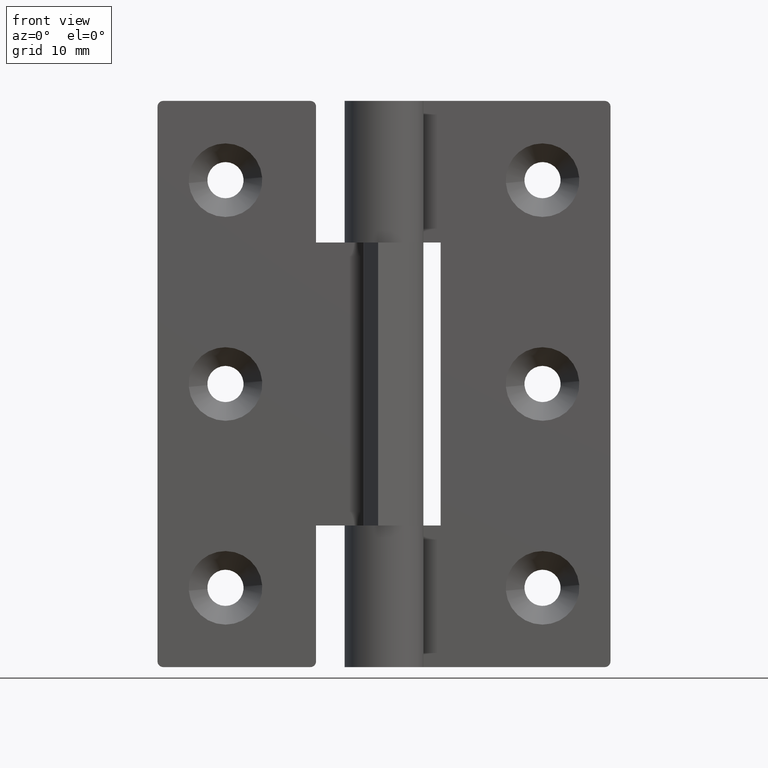
[diagram: clean part render]
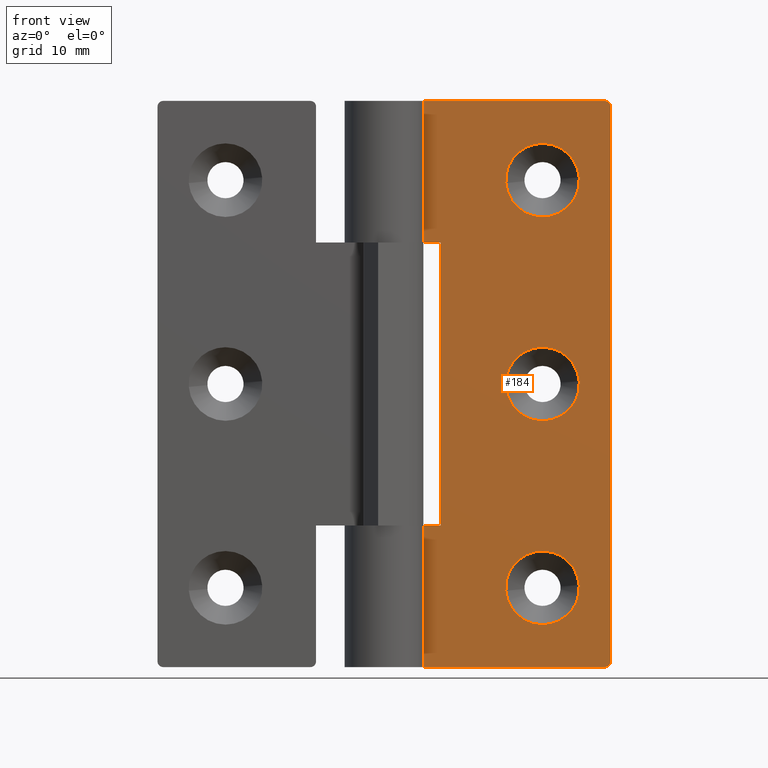
[diagram: same view with one face highlighted and labeled with its STEP entity id]
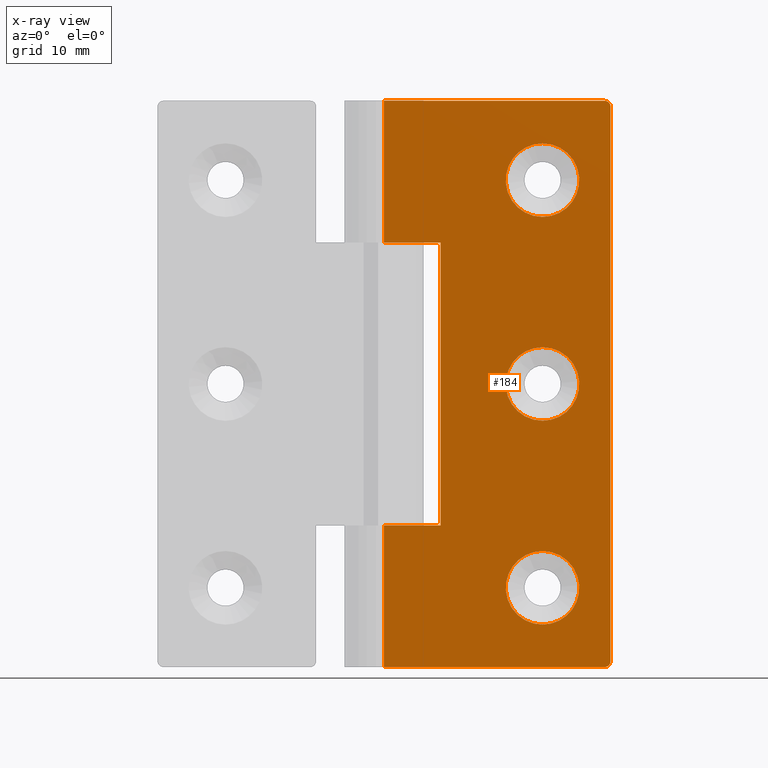
[diagram: x-ray of the same camera — body ghosted, the highlighted face saturated]
A machine part, front view. The second image highlights one B-rep face of the part: STEP entity #184.
The next image is the same camera in x-ray: the body ghosted, the highlighted face saturated — about 0% of this face is hidden behind the body in this view.
In plain terms, the highlighted planar face has unit normal (0, -1, 0).
Its self-contained STEP definition (entity closure, byte-faithful):
#184=ADVANCED_FACE('',(#571,#572,#573,#574),#570,.T.);
#570=PLANE('',#1090);
#571=FACE_OUTER_BOUND('',#1091,.T.);
#572=FACE_BOUND('',#1092,.T.);
#573=FACE_BOUND('',#1093,.T.);
#574=FACE_BOUND('',#1094,.T.);
#1087=CARTESIAN_POINT('',(-2.00000000000E+00,1.50000000000E+00,5.50000000000E+01));
#1088=DIRECTION('',(0.00000000000E+00,-1.00000000000E+00,0.00000000000E+00));
#1089=DIRECTION('',(0.00000000000E+00,0.00000000000E+00,-1.00000000000E+00));
#1090=AXIS2_PLACEMENT_3D('',#1087,#1088,#1089);
#1091=EDGE_LOOP('',(#1512,#1513,#1514,#1515,#1516,#1517,#1518,#1519,#1520,#1521));
#1092=EDGE_LOOP('',(#1522,#1523,#1524,#1525));
#1093=EDGE_LOOP('',(#1526,#1527,#1528,#1529));
#1094=EDGE_LOOP('',(#1530,#1531,#1532,#1533));
#1512=ORIENTED_EDGE('',*,*,#1796,.F.);
#1513=ORIENTED_EDGE('',*,*,#1797,.T.);
#1514=ORIENTED_EDGE('',*,*,#1798,.F.);
#1515=ORIENTED_EDGE('',*,*,#1799,.T.);
#1516=ORIENTED_EDGE('',*,*,#1800,.T.);
#1517=ORIENTED_EDGE('',*,*,#1801,.T.);
#1518=ORIENTED_EDGE('',*,*,#1802,.T.);
#1519=ORIENTED_EDGE('',*,*,#1803,.T.);
#1520=ORIENTED_EDGE('',*,*,#1804,.T.);
#1521=ORIENTED_EDGE('',*,*,#1805,.T.);
#1522=ORIENTED_EDGE('',*,*,#1806,.T.);
#1523=ORIENTED_EDGE('',*,*,#1807,.T.);
#1524=ORIENTED_EDGE('',*,*,#1808,.T.);
#1525=ORIENTED_EDGE('',*,*,#1809,.T.);
#1526=ORIENTED_EDGE('',*,*,#1810,.T.);
#1527=ORIENTED_EDGE('',*,*,#1811,.T.);
#1528=ORIENTED_EDGE('',*,*,#1812,.T.);
#1529=ORIENTED_EDGE('',*,*,#1813,.T.);
#1530=ORIENTED_EDGE('',*,*,#1814,.T.);
#1531=ORIENTED_EDGE('',*,*,#1815,.T.);
#1532=ORIENTED_EDGE('',*,*,#1816,.T.);
#1533=ORIENTED_EDGE('',*,*,#1817,.T.);
#1796=EDGE_CURVE('',#2698,#2699,#2700,.T.);
#1797=EDGE_CURVE('',#2698,#2706,#2707,.T.);
#1798=EDGE_CURVE('',#2713,#2706,#2714,.T.);
#1799=EDGE_CURVE('',#2713,#2720,#2721,.T.);
#1800=EDGE_CURVE('',#2720,#2727,#2728,.T.);
#1801=EDGE_CURVE('',#2727,#2734,#2735,.T.);
#1802=EDGE_CURVE('',#2734,#2741,#2742,.T.);
#1803=EDGE_CURVE('',#2741,#2748,#2749,.T.);
#1804=EDGE_CURVE('',#2748,#2755,#2756,.T.);
#1805=EDGE_CURVE('',#2755,#2699,#2762,.T.);
#1806=EDGE_CURVE('',#2768,#2769,#2770,.T.);
#1807=EDGE_CURVE('',#2769,#2776,#2777,.T.);
#1808=EDGE_CURVE('',#2776,#2783,#2784,.T.);
#1809=EDGE_CURVE('',#2783,#2768,#2790,.T.);
#1810=EDGE_CURVE('',#2796,#2797,#2798,.T.);
#1811=EDGE_CURVE('',#2797,#2804,#2805,.T.);
#1812=EDGE_CURVE('',#2804,#2811,#2812,.T.);
#1813=EDGE_CURVE('',#2811,#2796,#2818,.T.);
#1814=EDGE_CURVE('',#2824,#2825,#2826,.T.);
#1815=EDGE_CURVE('',#2825,#2832,#2833,.T.);
#1816=EDGE_CURVE('',#2832,#2839,#2840,.T.);
#1817=EDGE_CURVE('',#2839,#2824,#2846,.T.);
#2698=VERTEX_POINT('',#3688);
#2699=VERTEX_POINT('',#3689);
#2700=LINE('',#3690,#3691);
#2706=VERTEX_POINT('',#3693);
#2707=CIRCLE('',#3697,5.00000000000E-01);
#2713=VERTEX_POINT('',#3698);
#2714=LINE('',#3699,#3700);
#2720=VERTEX_POINT('',#3702);
#2721=CIRCLE('',#3706,5.00000000000E-01);
#2727=VERTEX_POINT('',#3707);
#2728=LINE('',#3708,#3709);
#2734=VERTEX_POINT('',#3711);
#2735=LINE('',#3712,#3713);
#2741=VERTEX_POINT('',#3715);
#2742=LINE('',#3716,#3717);
#2748=VERTEX_POINT('',#3719);
#2749=LINE('',#3720,#3721);
#2755=VERTEX_POINT('',#3723);
#2756=LINE('',#3724,#3725);
#2762=LINE('',#3727,#3728);
#2768=VERTEX_POINT('',#3730);
#2769=VERTEX_POINT('',#3731);
#2770=CIRCLE('',#3735,3.25000000010E+00);
#2776=VERTEX_POINT('',#3736);
#2777=CIRCLE('',#3740,3.25000000003E+00);
#2783=VERTEX_POINT('',#3741);
#2784=CIRCLE('',#3745,3.25000000010E+00);
#2790=CIRCLE('',#3749,3.25000000003E+00);
#2796=VERTEX_POINT('',#3750);
#2797=VERTEX_POINT('',#3751);
#2798=CIRCLE('',#3755,3.25000000010E+00);
#2804=VERTEX_POINT('',#3756);
#2805=CIRCLE('',#3760,3.25000000003E+00);
#2811=VERTEX_POINT('',#3761);
#2812=CIRCLE('',#3765,3.25000000010E+00);
#2818=CIRCLE('',#3769,3.25000000003E+00);
#2824=VERTEX_POINT('',#3770);
#2825=VERTEX_POINT('',#3771);
#2826=CIRCLE('',#3775,3.25000000010E+00);
#2832=VERTEX_POINT('',#3776);
#2833=CIRCLE('',#3780,3.25000000003E+00);
#2839=VERTEX_POINT('',#3781);
#2840=CIRCLE('',#3785,3.25000000010E+00);
#2846=CIRCLE('',#3789,3.25000000003E+00);
#3688=CARTESIAN_POINT('',(1.95000000000E+01,1.50000000000E+00,0.00000000000E+00));
#3689=CARTESIAN_POINT('',(0.00000000000E+00,1.50000000000E+00,0.00000000000E+00));
#3690=CARTESIAN_POINT('',(1.95000000000E+01,1.50000000000E+00,0.00000000000E+00));
#3691=VECTOR('',#3692,1.95000000000E+01);
#3692=DIRECTION('',(-1.00000000000E+00,0.00000000000E+00,0.00000000000E+00));
#3693=CARTESIAN_POINT('',(2.00000000000E+01,1.50000000000E+00,5.00000000000E-01));
#3694=CARTESIAN_POINT('',(1.95000000000E+01,1.50000000000E+00,5.00000000000E-01));
#3695=DIRECTION('',(2.35513868803E-15,-1.00000000000E+00,-2.22044604925E-15));
#3696=DIRECTION('',(-0.00000000000E+00,-2.22044604925E-15,1.00000000000E+00));
#3697=AXIS2_PLACEMENT_3D('',#3694,#3695,#3696);
#3698=CARTESIAN_POINT('',(2.00000000000E+01,1.50000000000E+00,4.95000000000E+01));
#3699=CARTESIAN_POINT('',(2.00000000000E+01,1.50000000000E+00,4.95000000000E+01));
#3700=VECTOR('',#3701,4.90000000000E+01);
#3701=DIRECTION('',(0.00000000000E+00,0.00000000000E+00,-1.00000000000E+00));
#3702=CARTESIAN_POINT('',(1.95000000000E+01,1.50000000000E+00,5.00000000000E+01));
#3703=CARTESIAN_POINT('',(1.95000000000E+01,1.50000000000E+00,4.95000000000E+01));
#3704=DIRECTION('',(6.69370674594E-30,-1.00000000000E+00,1.57009245868E-16));
#3705=DIRECTION('',(-1.00000000000E+00,-0.00000000000E+00,4.26325641456E-14));
#3706=AXIS2_PLACEMENT_3D('',#3703,#3704,#3705);
#3707=CARTESIAN_POINT('',(0.00000000000E+00,1.50000000000E+00,5.00000000000E+01));
#3708=CARTESIAN_POINT('',(1.95000000000E+01,1.50000000000E+00,5.00000000000E+01));
#3709=VECTOR('',#3710,1.95000000000E+01);
#3710=DIRECTION('',(-1.00000000000E+00,0.00000000000E+00,0.00000000000E+00));
#3711=CARTESIAN_POINT('',(0.00000000000E+00,1.50000000000E+00,3.75000000000E+01));
#3712=CARTESIAN_POINT('',(0.00000000000E+00,1.50000000000E+00,5.00000000000E+01));
#3713=VECTOR('',#3714,1.25000000000E+01);
#3714=DIRECTION('',(0.00000000000E+00,0.00000000000E+00,-1.00000000000E+00));
#3715=CARTESIAN_POINT('',(5.00000000000E+00,1.50000000000E+00,3.75000000000E+01));
#3716=CARTESIAN_POINT('',(0.00000000000E+00,1.50000000000E+00,3.75000000000E+01));
#3717=VECTOR('',#3718,5.00000000000E+00);
#3718=DIRECTION('',(1.00000000000E+00,-1.07913677994E-14,0.00000000000E+00));
#3719=CARTESIAN_POINT('',(5.00000000000E+00,1.50000000000E+00,1.25000000000E+01));
#3720=CARTESIAN_POINT('',(5.00000000000E+00,1.50000000000E+00,3.75000000000E+01));
#3721=VECTOR('',#3722,2.50000000000E+01);
#3722=DIRECTION('',(0.00000000000E+00,0.00000000000E+00,-1.00000000000E+00));
#3723=CARTESIAN_POINT('',(0.00000000000E+00,1.50000000000E+00,1.25000000000E+01));
#3724=CARTESIAN_POINT('',(5.00000000000E+00,1.50000000000E+00,1.25000000000E+01));
#3725=VECTOR('',#3726,5.00000000000E+00);
#3726=DIRECTION('',(-1.00000000000E+00,1.07913677994E-14,0.00000000000E+00));
#3727=CARTESIAN_POINT('',(0.00000000000E+00,1.50000000000E+00,1.25000000000E+01));
#3728=VECTOR('',#3729,1.25000000000E+01);
#3729=DIRECTION('',(0.00000000000E+00,0.00000000000E+00,-1.00000000000E+00));
#3730=CARTESIAN_POINT('',(1.40000000000E+01,1.50000000000E+00,3.75000000000E+00));
#3731=CARTESIAN_POINT('',(1.07600186654E+01,1.49999999998E+00,6.74500793874E+00));
#3732=CARTESIAN_POINT('',(1.40000000001E+01,1.49999999998E+00,7.00000000010E+00));
#3733=DIRECTION('',(1.83163977279E-27,1.00000000000E+00,6.31897952747E-12));
#3734=DIRECTION('',(2.32959634482E-11,-6.31897952747E-12,1.00000000000E+00));
#3735=AXIS2_PLACEMENT_3D('',#3732,#3733,#3734);
#3736=CARTESIAN_POINT('',(1.40000000000E+01,1.50000000000E+00,1.02500000000E+01));
#3737=CARTESIAN_POINT('',(1.40000000000E+01,1.49999999997E+00,6.99999999997E+00));
#3738=DIRECTION('',(1.49101738334E-11,1.00000000000E+00,-1.47490950728E-10));
#3739=DIRECTION('',(9.96917333730E-01,-3.29220411613E-12,7.84590957630E-02));
#3740=AXIS2_PLACEMENT_3D('',#3737,#3738,#3739);
#3741=CARTESIAN_POINT('',(1.72399813346E+01,1.49999999998E+00,7.25499206126E+00));
#3742=CARTESIAN_POINT('',(1.39999999999E+01,1.49999999998E+00,6.99999999990E+00));
#3743=DIRECTION('',(-4.83105371903E-17,1.00000000000E+00,-6.31918449172E-12));
#3744=DIRECTION('',(-2.32926840202E-11,-6.31918449172E-12,-1.00000000000E+00));
#3745=AXIS2_PLACEMENT_3D('',#3742,#3743,#3744);
#3746=CARTESIAN_POINT('',(1.40000000000E+01,1.49999999997E+00,7.00000000003E+00));
#3747=DIRECTION('',(-1.49095409529E-11,1.00000000000E+00,1.47483780008E-10));
#3748=DIRECTION('',(-9.96917333730E-01,-3.29213579471E-12,-7.84590957631E-02));
#3749=AXIS2_PLACEMENT_3D('',#3746,#3747,#3748);
#3750=CARTESIAN_POINT('',(1.40000000000E+01,1.50000000000E+00,2.17500000000E+01));
#3751=CARTESIAN_POINT('',(1.07600186654E+01,1.49999999998E+00,2.47450079387E+01));
#3752=CARTESIAN_POINT('',(1.40000000001E+01,1.49999999998E+00,2.50000000001E+01));
#3753=DIRECTION('',(1.22109318186E-26,1.00000000000E+00,6.31897952747E-12));
#3754=DIRECTION('',(2.32976031622E-11,-6.31897952747E-12,1.00000000000E+00));
#3755=AXIS2_PLACEMENT_3D('',#3752,#3753,#3754);
#3756=CARTESIAN_POINT('',(1.40000000000E+01,1.50000000000E+00,2.82500000000E+01));
#3757=CARTESIAN_POINT('',(1.40000000000E+01,1.49999999997E+00,2.50000000000E+01));
#3758=DIRECTION('',(1.49097452853E-11,1.00000000000E+00,-1.47483763927E-10));
#3759=DIRECTION('',(9.96917333730E-01,-3.29234075896E-12,7.84590957630E-02));
#3760=AXIS2_PLACEMENT_3D('',#3757,#3758,#3759);
#3761=CARTESIAN_POINT('',(1.72399813346E+01,1.49999999998E+00,2.52549920613E+01));
#3762=CARTESIAN_POINT('',(1.39999999999E+01,1.49999999998E+00,2.49999999999E+01));
#3763=DIRECTION('',(-3.62329028922E-16,1.00000000000E+00,-6.31938945597E-12));
#3764=DIRECTION('',(-2.32959634482E-11,-6.31938945597E-12,-1.00000000000E+00));
#3765=AXIS2_PLACEMENT_3D('',#3762,#3763,#3764);
#3766=CARTESIAN_POINT('',(1.40000000000E+01,1.49999999997E+00,2.50000000000E+01));
#3767=DIRECTION('',(-1.49101738334E-11,1.00000000000E+00,1.47490950728E-10));
#3768=DIRECTION('',(-9.96917333730E-01,-3.29220411613E-12,-7.84590957630E-02));
#3769=AXIS2_PLACEMENT_3D('',#3766,#3767,#3768);
#3770=CARTESIAN_POINT('',(1.40000000000E+01,1.50000000000E+00,3.97500000000E+01));
#3771=CARTESIAN_POINT('',(1.07600186654E+01,1.49999999998E+00,4.27450079387E+01));
#3772=CARTESIAN_POINT('',(1.40000000001E+01,1.49999999998E+00,4.30000000001E+01));
#3773=DIRECTION('',(1.95374909098E-26,1.00000000000E+00,6.31897952747E-12));
#3774=DIRECTION('',(2.33014291615E-11,-6.31897952747E-12,1.00000000000E+00));
#3775=AXIS2_PLACEMENT_3D('',#3772,#3773,#3774);
#3776=CARTESIAN_POINT('',(1.40000000000E+01,1.50000000000E+00,4.62500000000E+01));
#3777=CARTESIAN_POINT('',(1.40000000000E+01,1.49999999997E+00,4.30000000000E+01));
#3778=DIRECTION('',(1.49105827311E-11,1.00000000000E+00,-1.47492663104E-10));
#3779=DIRECTION('',(9.96917333730E-01,-3.29247740180E-12,7.84590957630E-02));
#3780=AXIS2_PLACEMENT_3D('',#3777,#3778,#3779);
#3781=CARTESIAN_POINT('',(1.72399813346E+01,1.49999999998E+00,4.32549920613E+01));
#3782=CARTESIAN_POINT('',(1.39999999999E+01,1.49999999998E+00,4.29999999999E+01));
#3783=DIRECTION('',(-4.83105372098E-17,1.00000000000E+00,-6.31945777738E-12));
#3784=DIRECTION('',(-2.32910443061E-11,-6.31945777738E-12,-1.00000000000E+00));
#3785=AXIS2_PLACEMENT_3D('',#3782,#3783,#3784);
#3786=CARTESIAN_POINT('',(1.40000000000E+01,1.49999999997E+00,4.30000000000E+01));
#3787=DIRECTION('',(-1.49111114920E-11,1.00000000000E+00,1.47499381649E-10));
#3788=DIRECTION('',(-9.96917333730E-01,-3.29247740180E-12,-7.84590957630E-02));
#3789=AXIS2_PLACEMENT_3D('',#3786,#3787,#3788);